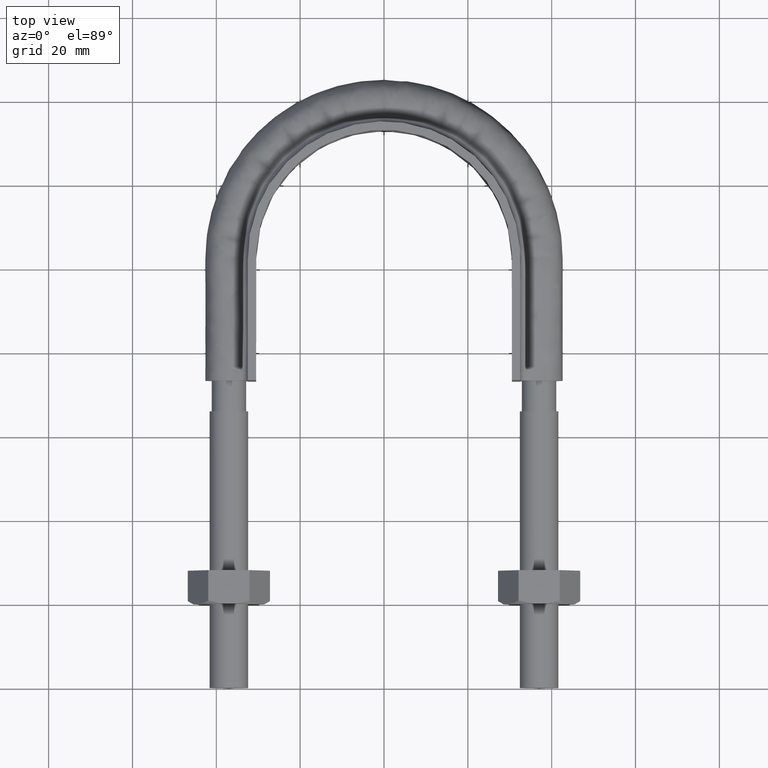
[diagram: clean part render]
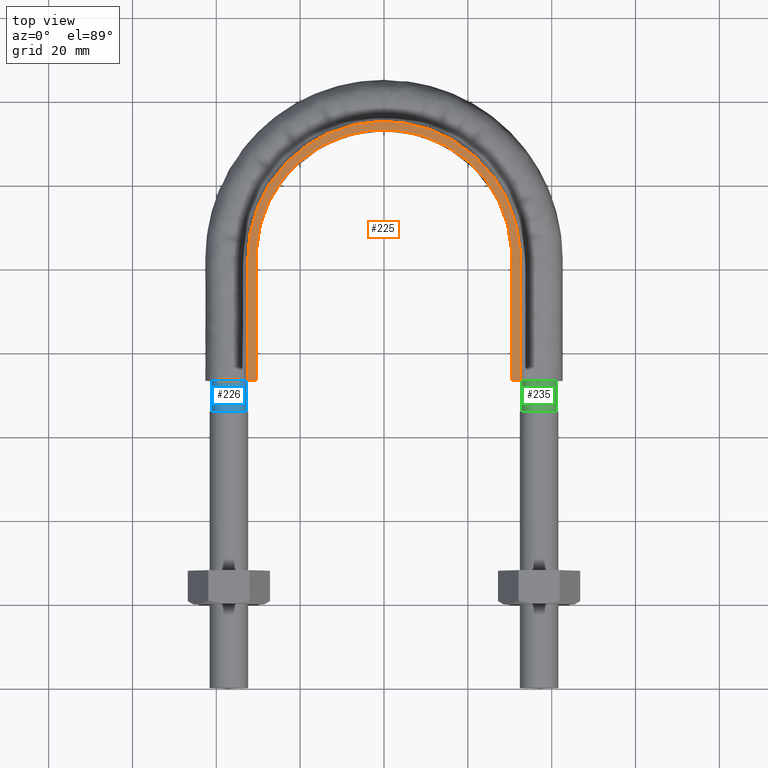
[diagram: same view with three faces highlighted in distinct colors, each labeled with its STEP entity id]
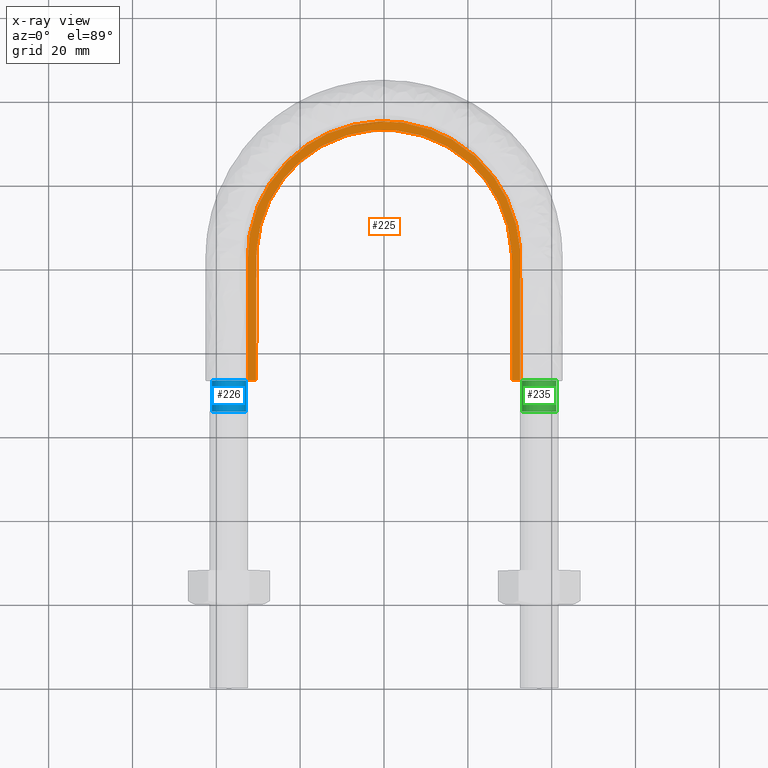
[diagram: x-ray of the same camera — body ghosted, the three highlighted faces saturated]
A machine part, top view with three faces highlighted in distinct colors.
The next image is the same camera in x-ray (body ghosted, the three faces saturated) — at least one of them is partly hidden behind the body in this view.
Their STEP definitions:

[orange] entity #225 — the highlighted planar face has unit normal (0, 0, 1).
#225 = ADVANCED_FACE( '', ( #311 ), #312, .T. );
#311 = FACE_OUTER_BOUND( '', #1159, .T. );
#312 = PLANE( '', #1160 );
#1159 = EDGE_LOOP( '', ( #1516, #1517, #1518, #1519 ) );
#1160 = AXIS2_PLACEMENT_3D( '', #1520, #1521, #1522 );
#1516 = ORIENTED_EDGE( '', *, *, #2011, .T. );
#1517 = ORIENTED_EDGE( '', *, *, #2009, .T. );
#1518 = ORIENTED_EDGE( '', *, *, #2003, .T. );
#1519 = ORIENTED_EDGE( '', *, *, #2016, .F. );
#1520 = CARTESIAN_POINT( '', ( 45.0000000000000, 153.300000000000, 12.5000000000000 ) );
#1521 = DIRECTION( '', ( 0.000000000000000, 0.000000000000000, 1.00000000000000 ) );
#1522 = DIRECTION( '', ( 1.00000000000000, 0.000000000000000, 0.000000000000000 ) );
#2003 = EDGE_CURVE( '', #2155, #2156, #2157, .T. );
#2009 = EDGE_CURVE( '', #2167, #2155, #2168, .T. );
#2011 = EDGE_CURVE( '', #2170, #2167, #2171, .T. );
#2016 = EDGE_CURVE( '', #2170, #2156, #2178, .T. );
#2155 = VERTEX_POINT( '', #2405 );
#2156 = VERTEX_POINT( '', #2406 );
#2157 = LINE( '', #2407, #2408 );
#2167 = VERTEX_POINT( '', #2475 );
#2168 = B_SPLINE_CURVE_WITH_KNOTS( '', 3, ( #2476, #2477, #2478, #2479, #2480, #2481, #2482, #2483, #2484, #2485, #2486, #2487, #2488, #2489, #2490, #2491, #2492, #2493, #2494, #2495, #2496, #2497, #2498, #2499, #2500, #2501, #2502, #2503, #2504, #2505, #2506, #2507, #2508, #2509, #2510, #2511, #2512, #2513, #2514, #2515, #2516, #2517, #2518, #2519, #2520, #2521, #2522, #2523, #2524, #2525, #2526, #2527, #2528, #2529, #2530, #2531, #2532, #2533, #2534, #2535, #2536, #2537, #2538, #2539, #2540, #2541, #2542, #2543, #2544, #2545, #2546, #2547, #2548, #2549 ), .UNSPECIFIED., .F., .F., ( 4, 1, 2, 2, 2, 2, 2, 2, 2, 2, 2, 2, 2, 2, 2, 2, 2, 2, 2, 2, 2, 2, 2, 2, 2, 2, 2, 2, 2, 2, 2, 2, 2, 2, 2, 2, 1, 4 ), ( 0.000000000000000, 0.0192554222640497, 0.0288831333960746, 0.0300865972875777, 0.0312900611790808, 0.0336969889620870, 0.0385108445280995, 0.0433247000941120, 0.0445281639856152, 0.0457316278771183, 0.0481385556601245, 0.0529524112261371, 0.0553593390091433, 0.0577662667921496, 0.0625801223581622, 0.0649870501411685, 0.0673939779241748, 0.0722078334901873, 0.0746147612731936, 0.0770216890561999, 0.0818355446222125, 0.0842424724052188, 0.0866494001882251, 0.0914632557542377, 0.0938701835372440, 0.0962771113202503, 0.101090966886263, 0.103497894669269, 0.105904822452275, 0.110718678018288, 0.115532533584301, 0.117939461367307, 0.120346389150313, 0.122753316933320, 0.123956780824823, 0.125160244716326, 0.134787955848351, 0.154043378112401 ), .UNSPECIFIED. );
#2170 = VERTEX_POINT( '', #2552 );
#2171 = LINE( '', #2553, #2554 );
#2178 = B_SPLINE_CURVE_WITH_KNOTS( '', 3, ( #2617, #2618, #2619, #2620, #2621, #2622, #2623, #2624, #2625, #2626, #2627, #2628, #2629, #2630, #2631, #2632, #2633 ), .UNSPECIFIED., .F., .F., ( 4, 3, 1, 1, 1, 1, 1, 1, 1, 3, 4 ), ( 0.117824773413900, 1.00000000000000, 1.50000000000000, 2.00000000000000, 3.00000000000000, 4.00000000000000, 5.00000000000000, 6.00000000000000, 6.50000000000000, 7.00000000000000, 7.88217522658610 ), .UNSPECIFIED. );
#2405 = CARTESIAN_POINT( '', ( 30.5000000000000, 73.3000000000001, 12.5000000000000 ) );
#2406 = CARTESIAN_POINT( '', ( 32.5000000000000, 73.3000000000001, 12.5000000000000 ) );
#2407 = CARTESIAN_POINT( '', ( 45.0000000000000, 73.3000000000001, 12.5000000000000 ) );
#2408 = VECTOR( '', #3058, 1000.00000000000 );
#2475 = CARTESIAN_POINT( '', ( -30.5000000000000, 73.3000000000001, 12.5000000000000 ) );
#2476 = CARTESIAN_POINT( '', ( -30.5000000000000, 73.3000000000001, 12.5000000000000 ) );
#2477 = CARTESIAN_POINT( '', ( -30.5000000000000, 79.7187970838913, 12.5000000000000 ) );
#2478 = CARTESIAN_POINT( '', ( -30.5000000000000, 89.3469927097281, 12.5000000000000 ) );
#2479 = CARTESIAN_POINT( '', ( -30.5000000000000, 98.9751883355649, 12.5000000000000 ) );
#2480 = CARTESIAN_POINT( '', ( -30.5000000000000, 102.585761695254, 12.5000000000000 ) );
#2481 = CARTESIAN_POINT( '', ( -30.4986844541323, 102.986923314969, 12.5000000000000 ) );
#2482 = CARTESIAN_POINT( '', ( -30.4745981741132, 103.789031308254, 12.5000000000000 ) );
#2483 = CARTESIAN_POINT( '', ( -30.4544492509141, 104.190003984771, 12.5000000000000 ) );
#2484 = CARTESIAN_POINT( '', ( -30.3699321862256, 105.392680532489, 12.5000000000000 ) );
#2485 = CARTESIAN_POINT( '', ( -30.2815513452004, 106.194196915207, 12.5000000000000 ) );
#2486 = CARTESIAN_POINT( '', ( -29.9199873207873, 108.597457571638, 12.5000000000000 ) );
#2487 = CARTESIAN_POINT( '', ( -29.5571198360745, 110.159787861722, 12.5000000000000 ) );
#2488 = CARTESIAN_POINT( '', ( -28.5972722047829, 113.207880590115, 12.5000000000000 ) );
#2489 = CARTESIAN_POINT( '', ( -28.0002144656635, 114.693617651351, 12.5000000000000 ) );
#2490 = CARTESIAN_POINT( '', ( -27.0992764629767, 116.500221008755, 12.5000000000000 ) );
#2491 = CARTESIAN_POINT( '', ( -26.9108830168220, 116.859704838131, 12.5000000000000 ) );
#2492 = CARTESIAN_POINT( '', ( -26.5213882779156, 117.567587786141, 12.5000000000000 ) );
#2493 = CARTESIAN_POINT( '', ( -26.3200606712639, 117.916474396834, 12.5000000000000 ) );
#2494 = CARTESIAN_POINT( '', ( -25.6966622493176, 118.948219384474, 12.5000000000000 ) );
#2495 = CARTESIAN_POINT( '', ( -25.2552822010553, 119.616244628455, 12.5000000000000 ) );
#2496 = CARTESIAN_POINT( '', ( -23.8563980365694, 121.562902855286, 12.5000000000000 ) );
#2497 = CARTESIAN_POINT( '', ( -22.8247599514250, 122.784586967088, 12.5000000000000 ) );
#2498 = CARTESIAN_POINT( '', ( -21.1277356912023, 124.502217366142, 12.5000000000000 ) );
#2499 = CARTESIAN_POINT( '', ( -20.5344294178501, 125.057480363821, 12.5000000000000 ) );
#2500 = CARTESIAN_POINT( '', ( -19.3154400053685, 126.111482848479, 12.5000000000000 ) );
#2501 = CARTESIAN_POINT( '', ( -18.6885192790513, 126.611839840476, 12.5000000000000 ) );
#2502 = CARTESIAN_POINT( '', ( -16.7561230155804, 128.033962699371, 12.5000000000000 ) );
#2503 = CARTESIAN_POINT( '', ( -15.3990725127794, 128.876870841469, 12.5000000000000 ) );
#2504 = CARTESIAN_POINT( '', ( -13.2570671195093, 129.978502957120, 12.5000000000000 ) );
#2505 = CARTESIAN_POINT( '', ( -12.5228230069798, 130.319814017707, 12.5000000000000 ) );
#2506 = CARTESIAN_POINT( '', ( -11.0306240768060, 130.942412499717, 12.5000000000000 ) );
#2507 = CARTESIAN_POINT( '', ( -10.2767436568867, 131.222274993299, 12.5000000000000 ) );
#2508 = CARTESIAN_POINT( '', ( -7.99256638845166, 131.970812104532, 12.5000000000000 ) );
#2509 = CARTESIAN_POINT( '', ( -6.43991564048131, 132.349172113476, 12.5000000000000 ) );
#2510 = CARTESIAN_POINT( '', ( -4.06589188416628, 132.734709900453, 12.5000000000000 ) );
#2511 = CARTESIAN_POINT( '', ( -3.26699737472984, 132.832705696047, 12.5000000000000 ) );
#2512 = CARTESIAN_POINT( '', ( -1.65347310558416, 132.965123458688, 12.5000000000000 ) );
#2513 = CARTESIAN_POINT( '', ( -0.846703494355733, 132.998768451046, 12.5000000000000 ) );
#2514 = CARTESIAN_POINT( '', ( 1.55984817231918, 133.002363337310, 12.5000000000000 ) );
#2515 = CARTESIAN_POINT( '', ( 3.15187678310376, 132.876183128002, 12.5000000000000 ) );
#2516 = CARTESIAN_POINT( '', ( 5.52210746155246, 132.501305428157, 12.5000000000000 ) );
#2517 = CARTESIAN_POINT( '', ( 6.30919715953047, 132.345218975853, 12.5000000000000 ) );
#2518 = CARTESIAN_POINT( '', ( 7.87729381106992, 131.969662553274, 12.5000000000000 ) );
#2519 = CARTESIAN_POINT( '', ( 8.65917048563720, 131.749575242181, 12.5000000000000 ) );
#2520 = CARTESIAN_POINT( '', ( 10.9545464152788, 131.005259840030, 12.5000000000000 ) );
#2521 = CARTESIAN_POINT( '', ( 12.4320231471581, 130.394841390723, 12.5000000000000 ) );
#2522 = CARTESIAN_POINT( '', ( 14.5688395440172, 129.307386671407, 12.5000000000000 ) );
#2523 = CARTESIAN_POINT( '', ( 15.2677563263257, 128.915999398825, 12.5000000000000 ) );
#2524 = CARTESIAN_POINT( '', ( 16.6381409078520, 128.073822399900, 12.5000000000000 ) );
#2525 = CARTESIAN_POINT( '', ( 17.3125759005461, 127.620964775786, 12.5000000000000 ) );
#2526 = CARTESIAN_POINT( '', ( 19.2664798661708, 126.192854811404, 12.5000000000000 ) );
#2527 = CARTESIAN_POINT( '', ( 20.4798446876839, 125.148667712286, 12.5000000000000 ) );
#2528 = CARTESIAN_POINT( '', ( 22.1715309172385, 123.449889227024, 12.5000000000000 ) );
#2529 = CARTESIAN_POINT( '', ( 22.7138929749291, 122.861402400307, 12.5000000000000 ) );
#2530 = CARTESIAN_POINT( '', ( 23.7548102890672, 121.639210134757, 12.5000000000000 ) );
#2531 = CARTESIAN_POINT( '', ( 24.2544864579076, 121.003952520684, 12.5000000000000 ) );
#2532 = CARTESIAN_POINT( '', ( 25.6776288297832, 119.037581170348, 12.5000000000000 ) );
#2533 = CARTESIAN_POINT( '', ( 26.5096219006963, 117.668392928187, 12.5000000000000 ) );
#2534 = CARTESIAN_POINT( '', ( 27.9456565910456, 114.816255937661, 12.5000000000000 ) );
#2535 = CARTESIAN_POINT( '', ( 28.5509590265554, 113.333936406938, 12.5000000000000 ) );
#2536 = CARTESIAN_POINT( '', ( 29.2876344042200, 111.024979684816, 12.5000000000000 ) );
#2537 = CARTESIAN_POINT( '', ( 29.5032356740682, 110.243977307862, 12.5000000000000 ) );
#2538 = CARTESIAN_POINT( '', ( 29.8703294719088, 108.679738122459, 12.5000000000000 ) );
#2539 = CARTESIAN_POINT( '', ( 30.0228181117526, 107.893587442054, 12.5000000000000 ) );
#2540 = CARTESIAN_POINT( '', ( 30.2663038414341, 106.313305021184, 12.5000000000000 ) );
#2541 = CARTESIAN_POINT( '', ( 30.3573018810972, 105.519173403997, 12.5000000000000 ) );
#2542 = CARTESIAN_POINT( '', ( 30.4466313783281, 104.321854045247, 12.5000000000000 ) );
#2543 = CARTESIAN_POINT( '', ( 30.4685308150342, 103.921725219210, 12.5000000000000 ) );
#2544 = CARTESIAN_POINT( '', ( 30.4961990804468, 103.119373956692, 12.5000000000000 ) );
#2545 = CARTESIAN_POINT( '', ( 30.5000000000001, 102.716896102985, 12.5000000000000 ) );
#2546 = CARTESIAN_POINT( '', ( 30.5000000000001, 99.0901554875488, 12.5000000000000 ) );
#2547 = CARTESIAN_POINT( '', ( 30.5000000000000, 89.4188471797180, 12.5000000000000 ) );
#2548 = CARTESIAN_POINT( '', ( 30.5000000000000, 79.7475388718872, 12.5000000000000 ) );
#2549 = CARTESIAN_POINT( '', ( 30.5000000000000, 73.3000000000001, 12.5000000000000 ) );
#2552 = CARTESIAN_POINT( '', ( -32.5000000000000, 73.3000000000001, 12.5000000000000 ) );
#2553 = CARTESIAN_POINT( '', ( 45.0000000000000, 73.3000000000001, 12.5000000000000 ) );
#2554 = VECTOR( '', #3062, 1000.00000000000 );
#2617 = CARTESIAN_POINT( '', ( -32.5000000000000, 73.3000000000001, 12.5000000000000 ) );
#2618 = CARTESIAN_POINT( '', ( -32.5000000000000, 83.0333333333334, 12.5000000000000 ) );
#2619 = CARTESIAN_POINT( '', ( -32.5000000000000, 92.7666666666667, 12.5000000000000 ) );
#2620 = CARTESIAN_POINT( '', ( -32.5000000000000, 102.500000000000, 12.5000000000000 ) );
#2621 = CARTESIAN_POINT( '', ( -32.5000000000000, 105.325542369813, 12.5000000000000 ) );
#2622 = CARTESIAN_POINT( '', ( -31.7387347919768, 111.008617759312, 12.5000000000000 ) );
#2623 = CARTESIAN_POINT( '', ( -27.3871545291852, 121.582731692400, 12.5000000000000 ) );
#2624 = CARTESIAN_POINT( '', ( -17.0093196223625, 131.962325971844, 12.5000000000000 ) );
#2625 = CARTESIAN_POINT( '', ( 3.23306948061794E-014, 136.518837014078, 12.5000000000000 ) );
#2626 = CARTESIAN_POINT( '', ( 17.0093196223626, 131.962325971844, 12.5000000000000 ) );
#2627 = CARTESIAN_POINT( '', ( 27.3871545291853, 121.582731692400, 12.5000000000000 ) );
#2628 = CARTESIAN_POINT( '', ( 31.7387347919769, 111.008617759312, 12.5000000000000 ) );
#2629 = CARTESIAN_POINT( '', ( 32.5000000000000, 105.325542369813, 12.5000000000000 ) );
#2630 = CARTESIAN_POINT( '', ( 32.5000000000000, 102.500000000000, 12.5000000000000 ) );
#2631 = CARTESIAN_POINT( '', ( 32.5000000000000, 92.7666666666667, 12.5000000000000 ) );
#2632 = CARTESIAN_POINT( '', ( 32.5000000000000, 83.0333333333334, 12.5000000000000 ) );
#2633 = CARTESIAN_POINT( '', ( 32.5000000000000, 73.3000000000001, 12.5000000000000 ) );
#3058 = DIRECTION( '', ( 1.00000000000000, -1.22460635382238E-016, 0.000000000000000 ) );
#3062 = DIRECTION( '', ( 1.00000000000000, -1.22460635382238E-016, 0.000000000000000 ) );

[blue] entity #226 — the highlighted cylindrical surface (bore or boss wall) has radius 4.1 mm, axis along (-0, -1, 0).
#226 = ADVANCED_FACE( '', ( #313, #314 ), #315, .T. );
#313 = FACE_OUTER_BOUND( '', #1161, .T. );
#314 = FACE_OUTER_BOUND( '', #1162, .T. );
#315 = CYLINDRICAL_SURFACE( '', #1163, 4.10000000000000 );
#1161 = EDGE_LOOP( '', ( #1523 ) );
#1162 = EDGE_LOOP( '', ( #1524, #1525, #1526, #1527, #1528, #1529, #1530 ) );
#1163 = AXIS2_PLACEMENT_3D( '', #1531, #1532, #1533 );
#1523 = ORIENTED_EDGE( '', *, *, #2017, .T. );
#1524 = ORIENTED_EDGE( '', *, *, #2018, .T. );
#1525 = ORIENTED_EDGE( '', *, *, #2019, .T. );
#1526 = ORIENTED_EDGE( '', *, *, #2020, .T. );
#1527 = ORIENTED_EDGE( '', *, *, #2021, .T. );
#1528 = ORIENTED_EDGE( '', *, *, #2022, .T. );
#1529 = ORIENTED_EDGE( '', *, *, #2023, .T. );
#1530 = ORIENTED_EDGE( '', *, *, #2024, .T. );
#1531 = CARTESIAN_POINT( '', ( -37.0000000000000, 73.3000000000000, -2.07570776972893E-015 ) );
#1532 = DIRECTION( '', ( -2.44921270764475E-016, -1.00000000000000, 6.12303176911189E-017 ) );
#1533 = DIRECTION( '', ( 1.00000000000000, -2.44921270764475E-016, 0.000000000000000 ) );
#2017 = EDGE_CURVE( '', #2179, #2179, #2180, .T. );
#2018 = EDGE_CURVE( '', #2181, #2182, #2183, .T. );
#2019 = EDGE_CURVE( '', #2182, #2184, #2185, .T. );
#2020 = EDGE_CURVE( '', #2184, #2186, #2187, .T. );
#2021 = EDGE_CURVE( '', #2186, #2188, #2189, .T. );
#2022 = EDGE_CURVE( '', #2188, #2190, #2191, .T. );
#2023 = EDGE_CURVE( '', #2190, #2192, #2193, .T. );
#2024 = EDGE_CURVE( '', #2192, #2181, #2194, .T. );
#2179 = VERTEX_POINT( '', #2634 );
#2180 = CIRCLE( '', #2635, 4.10000000000000 );
#2181 = VERTEX_POINT( '', #2636 );
#2182 = VERTEX_POINT( '', #2637 );
#2183 = CIRCLE( '', #2638, 4.10000000000000 );
#2184 = VERTEX_POINT( '', #2639 );
#2185 = CIRCLE( '', #2640, 4.10000000000000 );
#2186 = VERTEX_POINT( '', #2641 );
#2187 = CIRCLE( '', #2642, 4.10000000000000 );
#2188 = VERTEX_POINT( '', #2643 );
#2189 = CIRCLE( '', #2644, 4.10000000000000 );
#2190 = VERTEX_POINT( '', #2645 );
#2191 = CIRCLE( '', #2646, 4.10000000000000 );
#2192 = VERTEX_POINT( '', #2647 );
#2193 = CIRCLE( '', #2648, 4.10000000000000 );
#2194 = CIRCLE( '', #2649, 4.10000000000000 );
#2634 = CARTESIAN_POINT( '', ( -32.9000000000000, 66.0000000000000, -1.62872645058376E-015 ) );
#2635 = AXIS2_PLACEMENT_3D( '', #3064, #3065, #3066 );
#2636 = CARTESIAN_POINT( '', ( -32.9000000000000, 73.3000000000001, 5.38378651292854E-014 ) );
#2637 = CARTESIAN_POINT( '', ( -34.4436918124004, 73.3000000000000, 3.20550907813581 ) );
#2638 = AXIS2_PLACEMENT_3D( '', #3067, #3068, #3069 );
#2639 = CARTESIAN_POINT( '', ( -37.9123358292393, 73.3000000000000, 3.99720443994127 ) );
#2640 = AXIS2_PLACEMENT_3D( '', #3070, #3071, #3072 );
#2641 = CARTESIAN_POINT( '', ( -40.6939723584001, 73.3000000000000, 1.77892333038163 ) );
#2642 = AXIS2_PLACEMENT_3D( '', #3073, #3074, #3075 );
#2643 = CARTESIAN_POINT( '', ( -40.6939723583999, 73.3000000000000, -1.77892333038198 ) );
#2644 = AXIS2_PLACEMENT_3D( '', #3076, #3077, #3078 );
#2645 = CARTESIAN_POINT( '', ( -37.9123358292208, 73.3000000000000, -3.99720443994549 ) );
#2646 = AXIS2_PLACEMENT_3D( '', #3079, #3080, #3081 );
#2647 = CARTESIAN_POINT( '', ( -34.4436918123793, 73.3000000000000, -3.20550907811902 ) );
#2648 = AXIS2_PLACEMENT_3D( '', #3082, #3083, #3084 );
#2649 = AXIS2_PLACEMENT_3D( '', #3085, #3086, #3087 );
#3064 = CARTESIAN_POINT( '', ( -37.0000000000000, 66.0000000000000, -1.62872645058376E-015 ) );
#3065 = DIRECTION( '', ( 2.44921270764475E-016, 1.00000000000000, -6.12303176911189E-017 ) );
#3066 = DIRECTION( '', ( 1.00000000000000, -2.44921270764475E-016, 0.000000000000000 ) );
#3067 = CARTESIAN_POINT( '', ( -37.0000000000000, 73.3000000000000, -2.07570776972893E-015 ) );
#3068 = DIRECTION( '', ( -2.44921270764475E-016, -1.00000000000000, 6.12303176911189E-017 ) );
#3069 = DIRECTION( '', ( 1.00000000000000, -2.44921270764475E-016, 0.000000000000000 ) );
#3070 = CARTESIAN_POINT( '', ( -37.0000000000000, 73.3000000000000, -2.07570776972893E-015 ) );
#3071 = DIRECTION( '', ( -2.44921270764475E-016, -1.00000000000000, 6.12303176911189E-017 ) );
#3072 = DIRECTION( '', ( 1.00000000000000, -2.44921270764475E-016, 0.000000000000000 ) );
#3073 = CARTESIAN_POINT( '', ( -37.0000000000000, 73.3000000000000, -2.07570776972893E-015 ) );
#3074 = DIRECTION( '', ( -2.44921270764475E-016, -1.00000000000000, 6.12303176911189E-017 ) );
#3075 = DIRECTION( '', ( 1.00000000000000, -2.44921270764475E-016, 0.000000000000000 ) );
#3076 = CARTESIAN_POINT( '', ( -37.0000000000000, 73.3000000000000, -2.07570776972893E-015 ) );
#3077 = DIRECTION( '', ( -2.44921270764475E-016, -1.00000000000000, 6.12303176911189E-017 ) );
#3078 = DIRECTION( '', ( 1.00000000000000, -2.44921270764475E-016, 0.000000000000000 ) );
#3079 = CARTESIAN_POINT( '', ( -37.0000000000000, 73.3000000000000, -2.07570776972893E-015 ) );
#3080 = DIRECTION( '', ( -2.44921270764475E-016, -1.00000000000000, 6.12303176911189E-017 ) );
#3081 = DIRECTION( '', ( 1.00000000000000, -2.44921270764475E-016, 0.000000000000000 ) );
#3082 = CARTESIAN_POINT( '', ( -37.0000000000000, 73.3000000000000, -2.07570776972893E-015 ) );
#3083 = DIRECTION( '', ( -2.44921270764475E-016, -1.00000000000000, 6.12303176911189E-017 ) );
#3084 = DIRECTION( '', ( 1.00000000000000, -2.44921270764475E-016, 0.000000000000000 ) );
#3085 = CARTESIAN_POINT( '', ( -37.0000000000000, 73.3000000000000, -2.07570776972893E-015 ) );
#3086 = DIRECTION( '', ( -2.44921270764475E-016, -1.00000000000000, 6.12303176911189E-017 ) );
#3087 = DIRECTION( '', ( 1.00000000000000, -2.44921270764475E-016, 0.000000000000000 ) );

[green] entity #235 — the highlighted cylindrical surface (bore or boss wall) has radius 4.1 mm, axis along (-0, -1, 0).
#235 = ADVANCED_FACE( '', ( #335, #336 ), #337, .T. );
#335 = FACE_OUTER_BOUND( '', #1332, .T. );
#336 = FACE_OUTER_BOUND( '', #1333, .T. );
#337 = CYLINDRICAL_SURFACE( '', #1334, 4.10000000000000 );
#1332 = EDGE_LOOP( '', ( #1581 ) );
#1333 = EDGE_LOOP( '', ( #1582, #1583, #1584, #1585, #1586, #1587, #1588 ) );
#1334 = AXIS2_PLACEMENT_3D( '', #1589, #1590, #1591 );
#1581 = ORIENTED_EDGE( '', *, *, #2027, .T. );
#1582 = ORIENTED_EDGE( '', *, *, #2043, .T. );
#1583 = ORIENTED_EDGE( '', *, *, #2044, .T. );
#1584 = ORIENTED_EDGE( '', *, *, #2045, .T. );
#1585 = ORIENTED_EDGE( '', *, *, #2046, .T. );
#1586 = ORIENTED_EDGE( '', *, *, #2047, .T. );
#1587 = ORIENTED_EDGE( '', *, *, #2048, .T. );
#1588 = ORIENTED_EDGE( '', *, *, #2049, .T. );
#1589 = CARTESIAN_POINT( '', ( 37.0000000000000, 73.3000000000000, -2.07570776972893E-015 ) );
#1590 = DIRECTION( '', ( -2.44921270764475E-016, -1.00000000000000, 6.12303176911189E-017 ) );
#1591 = DIRECTION( '', ( 1.00000000000000, -2.44921270764475E-016, 0.000000000000000 ) );
#2027 = EDGE_CURVE( '', #2199, #2199, #2200, .T. );
#2043 = EDGE_CURVE( '', #2206, #2204, #2224, .T. );
#2044 = EDGE_CURVE( '', #2204, #2202, #2225, .T. );
#2045 = EDGE_CURVE( '', #2202, #2201, #2226, .T. );
#2046 = EDGE_CURVE( '', #2201, #2212, #2227, .T. );
#2047 = EDGE_CURVE( '', #2212, #2210, #2228, .T. );
#2048 = EDGE_CURVE( '', #2210, #2208, #2229, .T. );
#2049 = EDGE_CURVE( '', #2208, #2206, #2230, .T. );
#2199 = VERTEX_POINT( '', #2654 );
#2200 = CIRCLE( '', #2655, 4.10000000000000 );
#2201 = VERTEX_POINT( '', #2656 );
#2202 = VERTEX_POINT( '', #2657 );
#2204 = VERTEX_POINT( '', #2662 );
#2206 = VERTEX_POINT( '', #2667 );
#2208 = VERTEX_POINT( '', #2672 );
#2210 = VERTEX_POINT( '', #2677 );
#2212 = VERTEX_POINT( '', #2682 );
#2224 = CIRCLE( '', #2721, 4.10000000000000 );
#2225 = CIRCLE( '', #2722, 4.10000000000000 );
#2226 = CIRCLE( '', #2723, 4.10000000000000 );
#2227 = CIRCLE( '', #2724, 4.10000000000000 );
#2228 = CIRCLE( '', #2725, 4.10000000000000 );
#2229 = CIRCLE( '', #2726, 4.10000000000000 );
#2230 = CIRCLE( '', #2727, 4.10000000000000 );
#2654 = CARTESIAN_POINT( '', ( 41.1000000000000, 66.0000000000000, -1.62872645058376E-015 ) );
#2655 = AXIS2_PLACEMENT_3D( '', #3094, #3095, #3096 );
#2656 = CARTESIAN_POINT( '', ( 32.9000000000000, 73.3000000000000, 3.25958505856969E-013 ) );
#2657 = CARTESIAN_POINT( '', ( 34.4436918123789, 73.3000000000001, 3.20550907811872 ) );
#2662 = CARTESIAN_POINT( '', ( 37.9123358292209, 73.3000000000001, 3.99720443994547 ) );
#2667 = CARTESIAN_POINT( '', ( 40.6939723583998, 73.3000000000001, 1.77892333038233 ) );
#2672 = CARTESIAN_POINT( '', ( 40.6939723584000, 73.3000000000001, -1.77892333038182 ) );
#2677 = CARTESIAN_POINT( '', ( 37.9123358292214, 73.3000000000001, -3.99720443994537 ) );
#2682 = CARTESIAN_POINT( '', ( 34.4436918123815, 73.3000000000001, -3.20550907812077 ) );
#2721 = AXIS2_PLACEMENT_3D( '', #3100, #3101, #3102 );
#2722 = AXIS2_PLACEMENT_3D( '', #3103, #3104, #3105 );
#2723 = AXIS2_PLACEMENT_3D( '', #3106, #3107, #3108 );
#2724 = AXIS2_PLACEMENT_3D( '', #3109, #3110, #3111 );
#2725 = AXIS2_PLACEMENT_3D( '', #3112, #3113, #3114 );
#2726 = AXIS2_PLACEMENT_3D( '', #3115, #3116, #3117 );
#2727 = AXIS2_PLACEMENT_3D( '', #3118, #3119, #3120 );
#3094 = CARTESIAN_POINT( '', ( 37.0000000000000, 66.0000000000000, -1.62872645058376E-015 ) );
#3095 = DIRECTION( '', ( 2.44921270764476E-016, 1.00000000000000, -6.12303176911189E-017 ) );
#3096 = DIRECTION( '', ( 1.00000000000000, -2.44921270764476E-016, 0.000000000000000 ) );
#3100 = CARTESIAN_POINT( '', ( 37.0000000000000, 73.3000000000000, -2.07570776972893E-015 ) );
#3101 = DIRECTION( '', ( -2.44921270764475E-016, -1.00000000000000, 6.12303176911189E-017 ) );
#3102 = DIRECTION( '', ( 1.00000000000000, -2.44921270764475E-016, 0.000000000000000 ) );
#3103 = CARTESIAN_POINT( '', ( 37.0000000000000, 73.3000000000000, -2.07570776972893E-015 ) );
#3104 = DIRECTION( '', ( -2.44921270764475E-016, -1.00000000000000, 6.12303176911189E-017 ) );
#3105 = DIRECTION( '', ( 1.00000000000000, -2.44921270764475E-016, 0.000000000000000 ) );
#3106 = CARTESIAN_POINT( '', ( 37.0000000000000, 73.3000000000000, -2.07570776972893E-015 ) );
#3107 = DIRECTION( '', ( -2.44921270764475E-016, -1.00000000000000, 6.12303176911189E-017 ) );
#3108 = DIRECTION( '', ( 1.00000000000000, -2.44921270764475E-016, 0.000000000000000 ) );
#3109 = CARTESIAN_POINT( '', ( 37.0000000000000, 73.3000000000000, -2.07570776972893E-015 ) );
#3110 = DIRECTION( '', ( -2.44921270764475E-016, -1.00000000000000, 6.12303176911189E-017 ) );
#3111 = DIRECTION( '', ( 1.00000000000000, -2.44921270764475E-016, 0.000000000000000 ) );
#3112 = CARTESIAN_POINT( '', ( 37.0000000000000, 73.3000000000000, -2.07570776972893E-015 ) );
#3113 = DIRECTION( '', ( -2.44921270764475E-016, -1.00000000000000, 6.12303176911189E-017 ) );
#3114 = DIRECTION( '', ( 1.00000000000000, -2.44921270764475E-016, 0.000000000000000 ) );
#3115 = CARTESIAN_POINT( '', ( 37.0000000000000, 73.3000000000000, -2.07570776972893E-015 ) );
#3116 = DIRECTION( '', ( -2.44921270764475E-016, -1.00000000000000, 6.12303176911189E-017 ) );
#3117 = DIRECTION( '', ( 1.00000000000000, -2.44921270764475E-016, 0.000000000000000 ) );
#3118 = CARTESIAN_POINT( '', ( 37.0000000000000, 73.3000000000000, -2.07570776972893E-015 ) );
#3119 = DIRECTION( '', ( -2.44921270764475E-016, -1.00000000000000, 6.12303176911189E-017 ) );
#3120 = DIRECTION( '', ( 1.00000000000000, -2.44921270764475E-016, 0.000000000000000 ) );